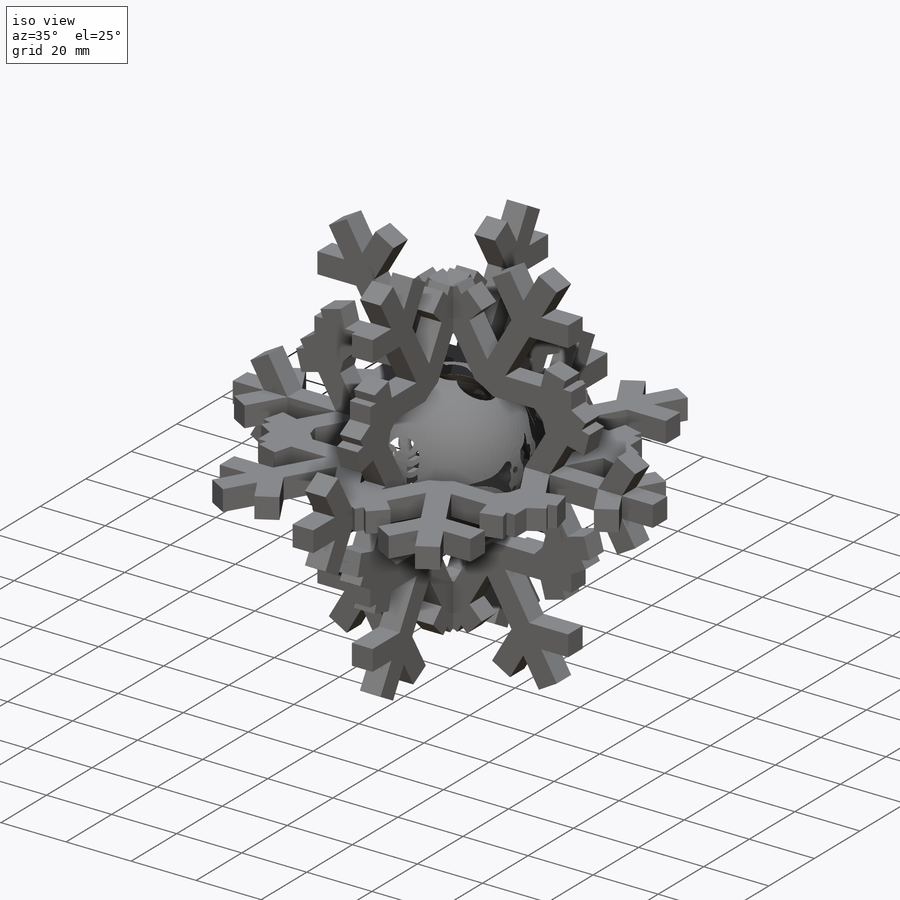
[diagram: iso view]
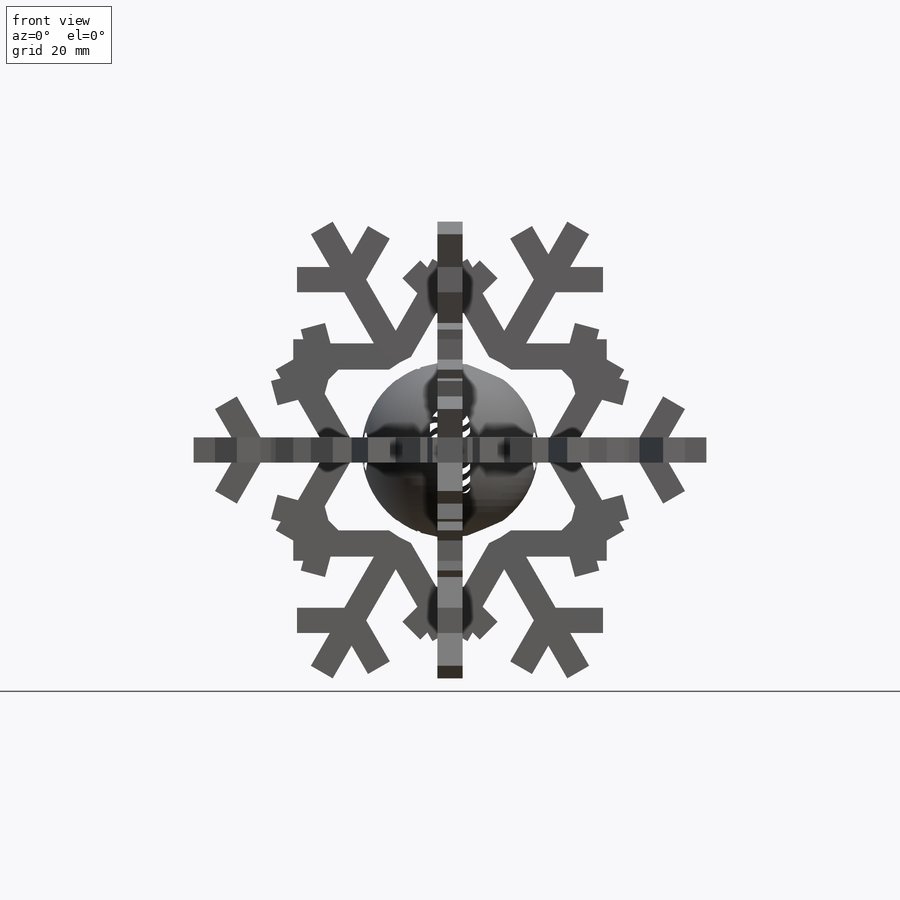
[diagram: front view]
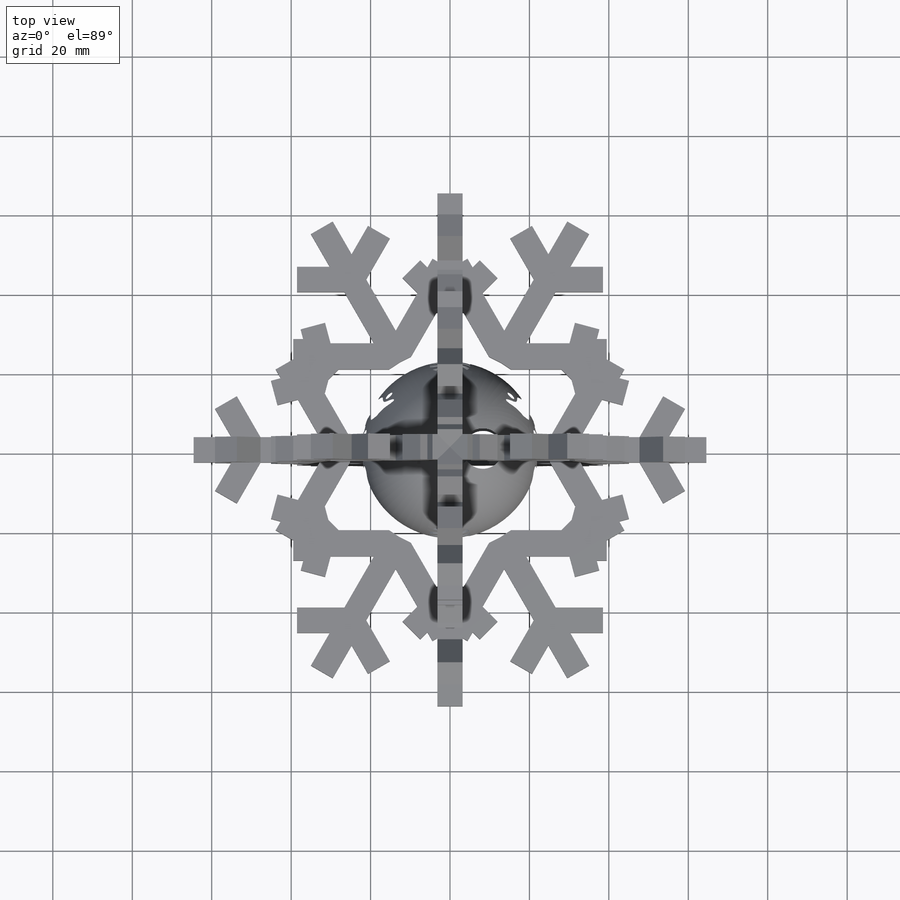
[diagram: top view]
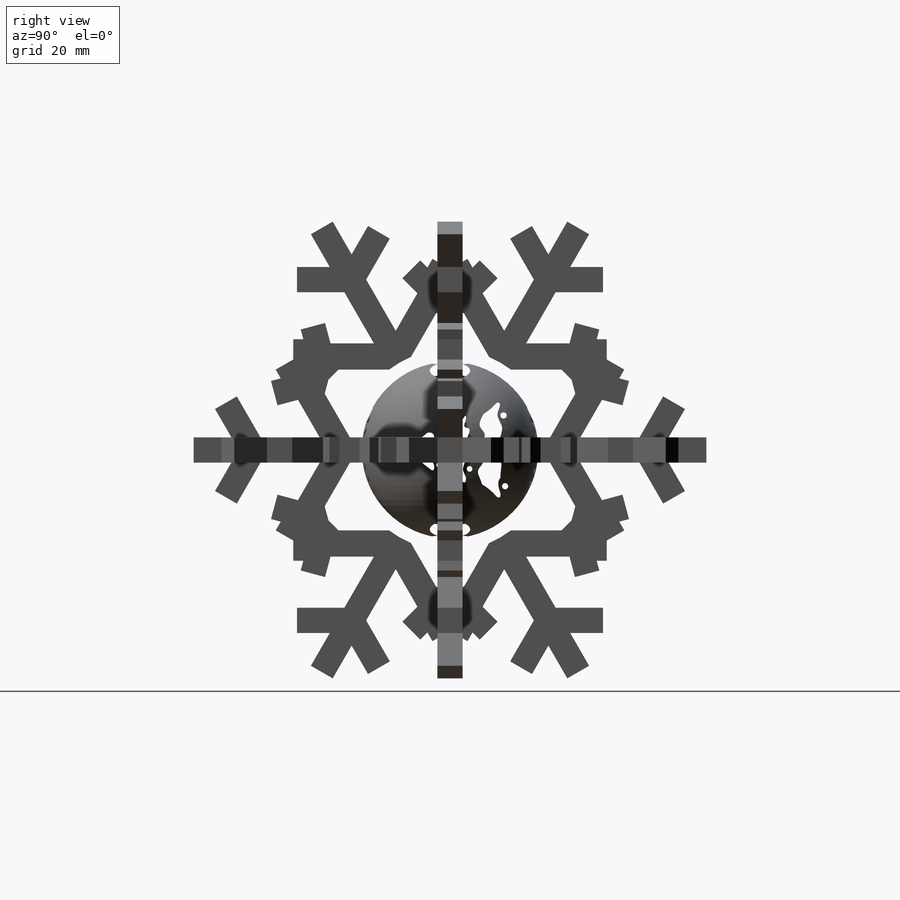
[diagram: right view]
SOLIDWORKS PART (.sldprt)
format: sldprt  version: not decoded by parser v0  size: 1,679,360 bytes
history: native  units: mm
features: sketch x10, revolve x4, plane x3, cut_extrude x3, extrude x3, material x1 (+11 scaffold rows collapsed)
feature tree (35):
  scaffold x11  (default folders/planes/origin — collapsed)
  material  "Material <not specified>"
  sketch  "Sketch9"  dims[D1=38.1mm D2=1.27mm D3=1.5875mm D4=2.54mm]
  sketch  "Sketch5"  dims[D1=44.45mm D2=3.175mm D3=3.175mm]
  revolve  "Revolve7"  Angle=360deg
  sketch  "Sketch14"
  revolve  "Revolve8"  Angle=360deg
  sketch  "Sketch15"
  revolve  "Revolve9"  Angle=360deg
  revolve  "Revolve1"  Angle=360deg
  plane  "Plane1"  Offset=22.225mm
  sketch  "Sketch6"  dims[c1.D1=4.064mm c1.D2=10.16mm c1.D3=15.24mm c1.D4=4.572mm c2.D1=1.524mm c2.D2=1.524mm c2.D3=1.524mm c2.D4=1.524mm c2.D5=1.524mm]
  cut_extrude  "Cut-Extrude1"  [1 undecoded]
  plane  "Plane2"  Offset=22.225mm
  sketch  "Sketch7"  dims[c1.D1=10.16mm c1.D2=8.89mm c1.D3=6.35mm c1.D4=3.81mm c1.D5=3.81mm c1.D6=~2.233058mm c2.D5=~0.79375mm c2.D6=6.35mm c2.D7=5.08mm]
  cut_extrude  "Cut-Extrude2"  [1 undecoded]
  plane  "Plane3"  Offset=22.225mm
  sketch  "Sketch8"
  cut_extrude  "Cut-Extrude3"  [1 undecoded]
  sketch  "Sketch1"  dims[c1.D1=50.8mm c1.D2=3.175mm c1.D3=3.175mm c1.D4=39.37mm c1.D5=9.525mm c1.D6=60.0deg c2.D6=6.35mm c2.D1=60.0deg c3.D1=12.7mm c4.D1=105.0deg c5.D1=7.62mm c6.D1=60.0deg c7.D1=10.922mm c8.D1=15.0deg c9.D1=6.35mm c9.D2=2.54mm c9.D3=60.0deg c10.D3=2.54mm c10.D1=6.35mm c11.D1=150.0deg c12.D1=6.0]
  extrude  "Boss-Extrude1"  Depth=3.175mm
  sketch  "Sketch2"
  extrude  "Boss-Extrude2"  Depth=3.175mm
  sketch  "Sketch4"
  extrude  "Boss-Extrude3"  Depth=3.175mm
decode coverage: 12 of 20 modeling features carry decoded parameters
note: ~ marks probable driven/reference dimensions
note: 3 parameter values undecoded
summary: no parameter record found for 3 features
note: suppression state not decoded; provenance and decode notes live in map.json
